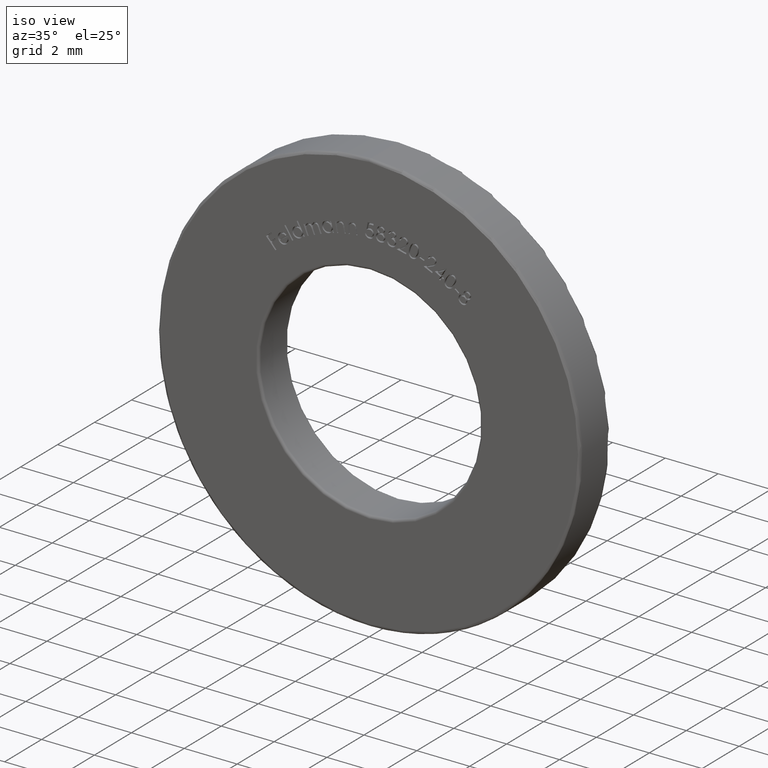
[diagram: clean part render]
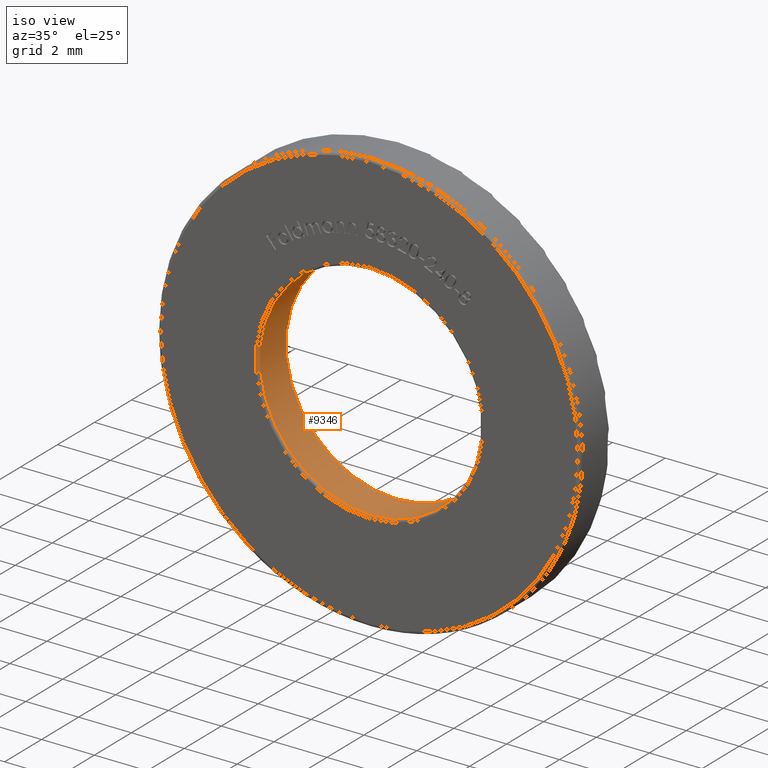
[diagram: same view with one face highlighted and labeled with its STEP entity id]
A machine part, iso view. The second image highlights one B-rep face of the part: STEP entity #9346.
In plain terms, the highlighted cylindrical surface (bore or boss wall) has radius 4.2 mm, axis along (-0, -1, -0).
Its self-contained STEP definition (entity closure, byte-faithful):
#910 = ORIENTED_EDGE ( 'NONE', *, *, #8897, .T. ) ;
#1349 = CARTESIAN_POINT ( 'NONE',  ( 0.0000000000000000000, 0.1000000000000000500, 0.0000000000000000000 ) ) ;
#2072 = DIRECTION ( 'NONE',  ( 0.0000000000000000000, 0.0000000000000000000, -1.000000000000000000 ) ) ;
#2462 = AXIS2_PLACEMENT_3D ( 'NONE', #1349, #13381, #7375 ) ;
#3777 = CARTESIAN_POINT ( 'NONE',  ( 0.0000000000000000000, 1.500000000000000000, 4.200000000000000200 ) ) ;
#4151 = EDGE_LOOP ( 'NONE', ( #14012 ) ) ;
#5651 = DIRECTION ( 'NONE',  ( 0.0000000000000000000, 0.0000000000000000000, 1.000000000000000000 ) ) ;
#5776 = VERTEX_POINT ( 'NONE', #8646 ) ;
#6718 = EDGE_CURVE ( 'NONE', #11676, #11676, #12379, .T. ) ;
#6983 = CARTESIAN_POINT ( 'NONE',  ( 0.0000000000000000000, 1.600000000000000100, 0.0000000000000000000 ) ) ;
#7375 = DIRECTION ( 'NONE',  ( 0.0000000000000000000, 0.0000000000000000000, 1.000000000000000000 ) ) ;
#8646 = CARTESIAN_POINT ( 'NONE',  ( 0.0000000000000000000, 0.1000000000000000500, 4.200000000000000200 ) ) ;
#8897 = EDGE_CURVE ( 'NONE', #5776, #5776, #14135, .T. ) ;
#9019 = CYLINDRICAL_SURFACE ( 'NONE', #14649, 4.200000000000000200 ) ;
#9346 = ADVANCED_FACE ( 'NONE', ( #12233, #14708 ), #9019, .F. ) ;
#10490 = DIRECTION ( 'NONE',  ( -0.0000000000000000000, -1.000000000000000000, -0.0000000000000000000 ) ) ;
#11676 = VERTEX_POINT ( 'NONE', #3777 ) ;
#11777 = CARTESIAN_POINT ( 'NONE',  ( 0.0000000000000000000, 1.500000000000000000, 0.0000000000000000000 ) ) ;
#12233 = FACE_OUTER_BOUND ( 'NONE', #14043, .T. ) ;
#12379 = CIRCLE ( 'NONE', #13510, 4.200000000000000200 ) ;
#13381 = DIRECTION ( 'NONE',  ( -0.0000000000000000000, -1.000000000000000000, -0.0000000000000000000 ) ) ;
#13510 = AXIS2_PLACEMENT_3D ( 'NONE', #11777, #14207, #5651 ) ;
#14012 = ORIENTED_EDGE ( 'NONE', *, *, #6718, .T. ) ;
#14043 = EDGE_LOOP ( 'NONE', ( #910 ) ) ;
#14135 = CIRCLE ( 'NONE', #2462, 4.200000000000000200 ) ;
#14207 = DIRECTION ( 'NONE',  ( 0.0000000000000000000, 1.000000000000000000, 0.0000000000000000000 ) ) ;
#14649 = AXIS2_PLACEMENT_3D ( 'NONE', #6983, #10490, #2072 ) ;
#14708 = FACE_OUTER_BOUND ( 'NONE', #4151, .T. ) ;